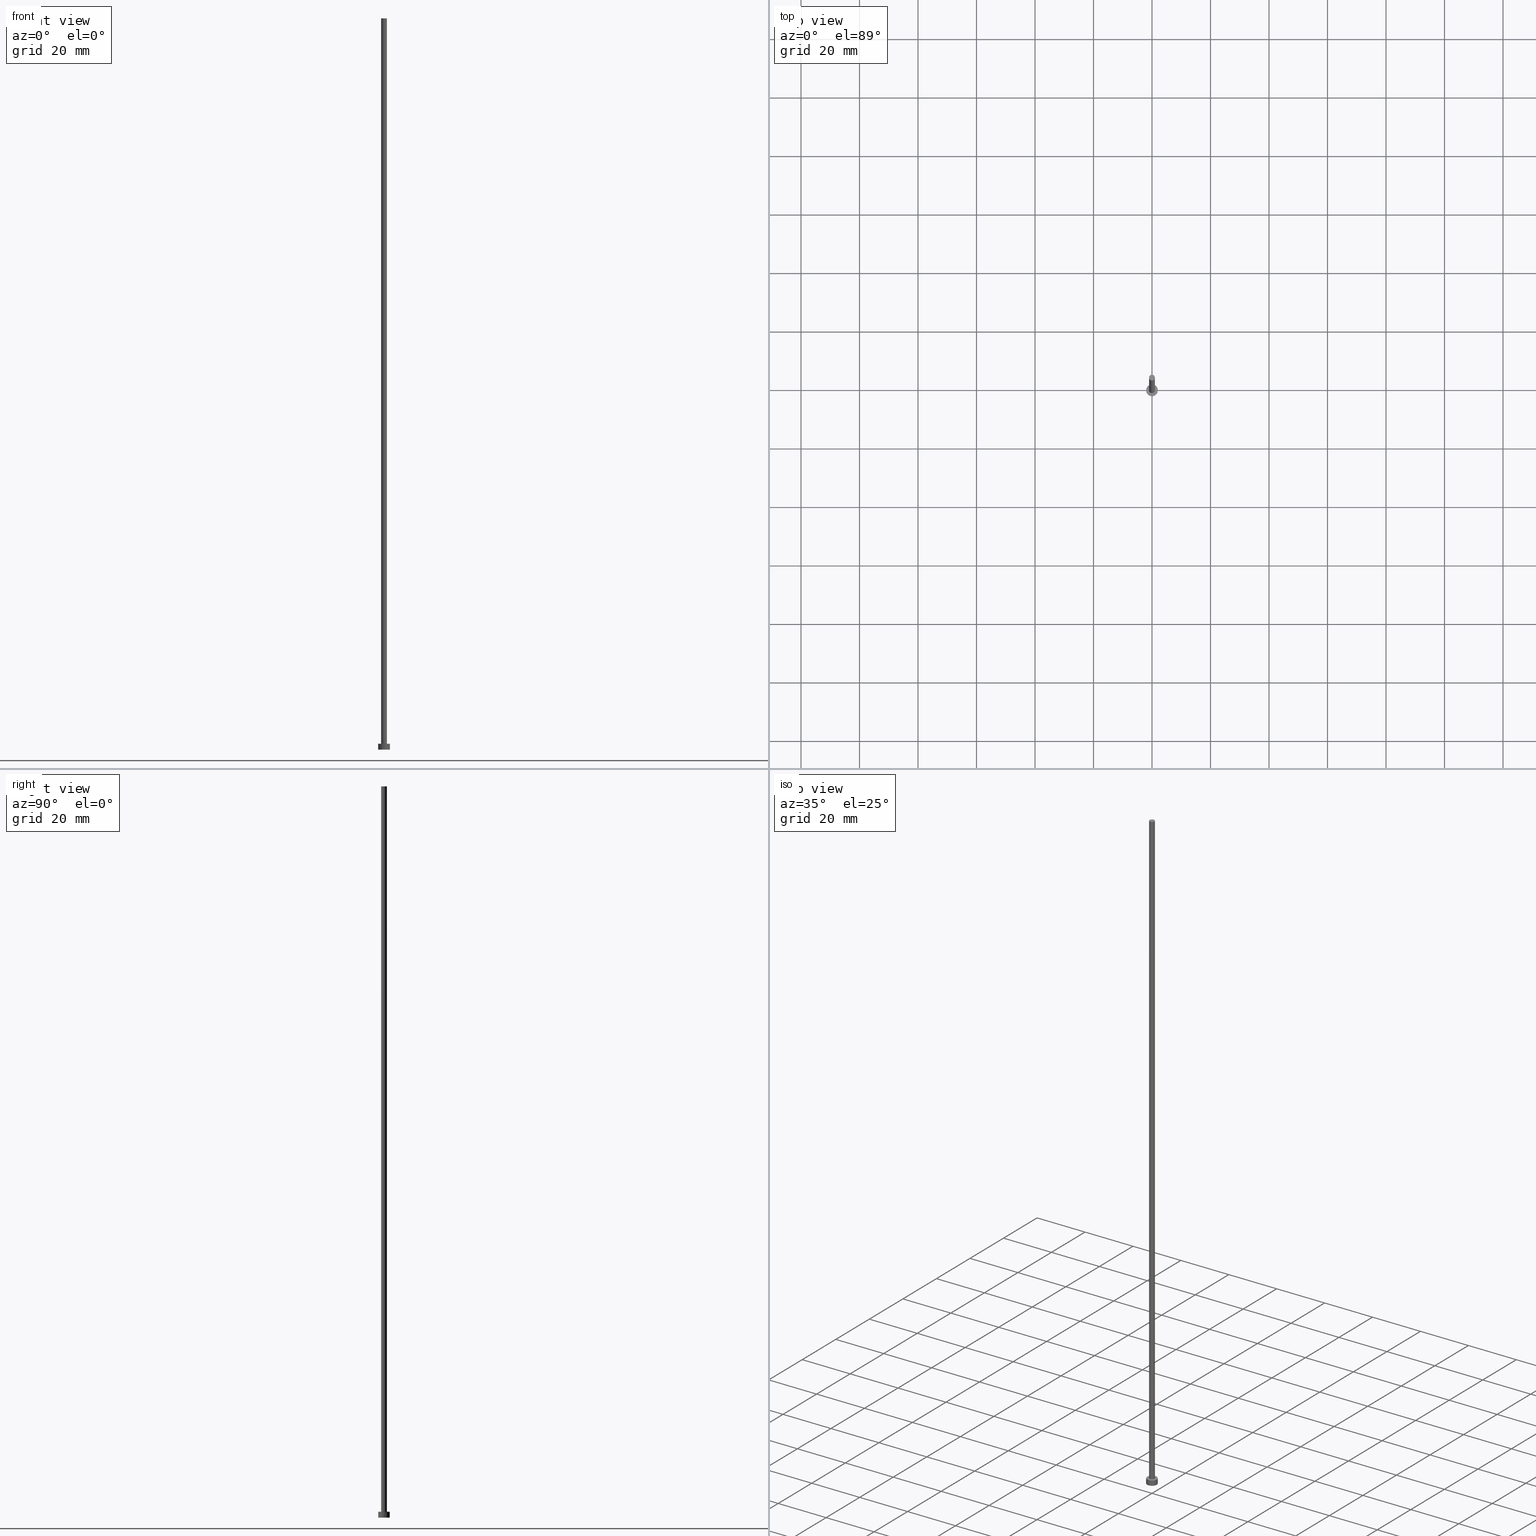
[diagram: canonical four-view strip — front | top / right | iso, engineering-drawing reading convention]
A machine part, canonical four-view strip (front | top / right | iso — engineering-drawing reading convention). The complete STEP part file that produces these views, byte-faithful:
ISO-10303-21;
HEADER;
FILE_DESCRIPTION (( 'STEP AP203' ),
    '1' );
FILE_NAME ('0b35.STEP',
    '2023-02-12T12:52:45',
    ( '' ),
    ( '' ),
    'SwSTEP 2.0',
    'SolidWorks 2019',
    '' );
FILE_SCHEMA (( 'CONFIG_CONTROL_DESIGN' ));
ENDSEC;

DATA;
#1 = CC_DESIGN_DATE_AND_TIME_ASSIGNMENT ( #144, #168, ( #180 ) ) ;
#2 = ORIENTED_EDGE ( 'NONE', *, *, #227, .F. ) ;
#3 = DIRECTION ( 'NONE',  ( -0.000000000000000000, -0.000000000000000000, -1.000000000000000000 ) ) ;
#4 = PERSON_AND_ORGANIZATION ( #91, #23 ) ;
#5 = CC_DESIGN_DATE_AND_TIME_ASSIGNMENT ( #150, #33, ( #96 ) ) ;
#6 = CARTESIAN_POINT ( 'NONE',  ( 0.000000000000000000, 0.000000000000000000, 2.000000000000000000 ) ) ;
#7 = EDGE_LOOP ( 'NONE', ( #10, #236, #202, #19 ) ) ;
#8 = CARTESIAN_POINT ( 'NONE',  ( -2.000000000000000000, 0.000000000000000000, 2.000000000000000000 ) ) ;
#9 = ADVANCED_BREP_SHAPE_REPRESENTATION ( '0b35', ( #44, #34 ), #193 ) ;
#10 = ORIENTED_EDGE ( 'NONE', *, *, #122, .F. ) ;
#11 = AXIS2_PLACEMENT_3D ( 'NONE', #186, #145, #88 ) ;
#12 = DIRECTION ( 'NONE',  ( -0.000000000000000000, -0.000000000000000000, -1.000000000000000000 ) ) ;
#13 = LOCAL_TIME ( 13, 52, 45.00000000000000000, #191 ) ;
#14 = PERSON_AND_ORGANIZATION ( #91, #23 ) ;
#15 = EDGE_CURVE ( 'NONE', #103, #105, #120, .T. ) ;
#16 = CARTESIAN_POINT ( 'NONE',  ( 0.000000000000000000, 0.000000000000000000, 0.000000000000000000 ) ) ;
#17 = PRODUCT_RELATED_PRODUCT_CATEGORY ( 'detail', '', ( #159 ) ) ;
#18 = VERTEX_POINT ( 'NONE', #224 ) ;
#19 = ORIENTED_EDGE ( 'NONE', *, *, #82, .F. ) ;
#20 = PRODUCT_DEFINITION_SHAPE ( 'NONE', 'NONE',  #180 ) ;
#21 = AXIS2_PLACEMENT_3D ( 'NONE', #134, #210, #79 ) ;
#22 = CYLINDRICAL_SURFACE ( 'NONE', #100, 1.000000000000000000 ) ;
#23 = ORGANIZATION ( 'NEUR�EN�', 'NEUR�EN�', '' ) ;
#24 = EDGE_LOOP ( 'NONE', ( #252, #205 ) ) ;
#25 = EDGE_CURVE ( 'NONE', #176, #199, #230, .T. ) ;
#26 = ORIENTED_EDGE ( 'NONE', *, *, #51, .F. ) ;
#27 = ORIENTED_EDGE ( 'NONE', *, *, #122, .T. ) ;
#28 = CIRCLE ( 'NONE', #83, 2.000000000000000000 ) ;
#29 = DIRECTION ( 'NONE',  ( -1.000000000000000000, 0.000000000000000000, 0.000000000000000000 ) ) ;
#30 = COORDINATED_UNIVERSAL_TIME_OFFSET ( 1, 0, .AHEAD. ) ;
#31 = DIRECTION ( 'NONE',  ( -1.000000000000000000, 0.000000000000000000, 0.000000000000000000 ) ) ;
#32 = DIRECTION ( 'NONE',  ( -0.000000000000000000, -0.000000000000000000, -1.000000000000000000 ) ) ;
#33 = DATE_TIME_ROLE ( 'classification_date' ) ;
#34 = AXIS2_PLACEMENT_3D ( 'NONE', #251, #81, #47 ) ;
#35 = DIRECTION ( 'NONE',  ( -0.000000000000000000, -0.000000000000000000, -1.000000000000000000 ) ) ;
#36 = PERSON_AND_ORGANIZATION_ROLE ( 'classification_officer' ) ;
#37 = DIRECTION ( 'NONE',  ( 0.000000000000000000, 0.000000000000000000, 1.000000000000000000 ) ) ;
#38 = CIRCLE ( 'NONE', #59, 1.000000000000000000 ) ;
#39 = ADVANCED_FACE ( 'NONE', ( #169 ), #149, .T. ) ;
#40 = APPROVAL ( #147, 'NEUR�EN�' ) ;
#41 = DIRECTION ( 'NONE',  ( 1.000000000000000000, 0.000000000000000000, 0.000000000000000000 ) ) ;
#42 = APPROVAL ( #53, 'NEUR�EN�' ) ;
#43 = FACE_OUTER_BOUND ( 'NONE', #24, .T. ) ;
#44 = MANIFOLD_SOLID_BREP ( 'P�idat vysunut�m3', #253 ) ;
#45 = CYLINDRICAL_SURFACE ( 'NONE', #245, 1.000000000000000000 ) ;
#46 = CALENDAR_DATE ( 2023, 12, 2 ) ;
#47 = DIRECTION ( 'NONE',  ( 1.000000000000000000, 0.000000000000000000, 0.000000000000000000 ) ) ;
#48 = FACE_BOUND ( 'NONE', #254, .T. ) ;
#49 = ADVANCED_FACE ( 'NONE', ( #225 ), #22, .T. ) ;
#50 = DIRECTION ( 'NONE',  ( 1.000000000000000000, 0.000000000000000000, 0.000000000000000000 ) ) ;
#51 = EDGE_CURVE ( 'NONE', #18, #206, #52, .T. ) ;
#52 = CIRCLE ( 'NONE', #201, 2.000000000000000000 ) ;
#53 = APPROVAL_STATUS ( 'not_yet_approved' ) ;
#54 = CARTESIAN_POINT ( 'NONE',  ( 0.000000000000000000, 0.000000000000000000, 2.000000000000000000 ) ) ;
#55 = CC_DESIGN_APPROVAL ( #140, ( #180 ) ) ;
#56 = CIRCLE ( 'NONE', #94, 1.000000000000000000 ) ;
#57 = ORIENTED_EDGE ( 'NONE', *, *, #51, .T. ) ;
#58 = ORIENTED_EDGE ( 'NONE', *, *, #146, .T. ) ;
#59 = AXIS2_PLACEMENT_3D ( 'NONE', #244, #85, #66 ) ;
#60 = COORDINATED_UNIVERSAL_TIME_OFFSET ( 1, 0, .AHEAD. ) ;
#61 = ORIENTED_EDGE ( 'NONE', *, *, #25, .T. ) ;
#62 = CALENDAR_DATE ( 2023, 12, 2 ) ;
#63 = PLANE ( 'NONE',  #107 ) ;
#64 = PERSON_AND_ORGANIZATION ( #91, #23 ) ;
#65 = DIRECTION ( 'NONE',  ( 1.000000000000000000, 0.000000000000000000, 0.000000000000000000 ) ) ;
#66 = DIRECTION ( 'NONE',  ( 1.000000000000000000, 0.000000000000000000, 0.000000000000000000 ) ) ;
#67 = CALENDAR_DATE ( 2023, 12, 2 ) ;
#68 = CARTESIAN_POINT ( 'NONE',  ( 0.000000000000000000, 0.000000000000000000, 250.0000000000000000 ) ) ;
#69 = VECTOR ( 'NONE', #35, 1000.000000000000000 ) ;
#70 = PERSON_AND_ORGANIZATION ( #91, #23 ) ;
#71 = CC_DESIGN_PERSON_AND_ORGANIZATION_ASSIGNMENT ( #97, #226, ( #109 ) ) ;
#72 = SHAPE_DEFINITION_REPRESENTATION ( #20, #9 ) ;
#73 = CARTESIAN_POINT ( 'NONE',  ( 0.000000000000000000, 0.000000000000000000, 2.000000000000000000 ) ) ;
#74 = APPROVAL_ROLE ( '' ) ;
#75 = CARTESIAN_POINT ( 'NONE',  ( 2.000000000000000000, 2.449293598294706414E-16, 2.000000000000000000 ) ) ;
#76 = CC_DESIGN_PERSON_AND_ORGANIZATION_ASSIGNMENT ( #189, #87, ( #159 ) ) ;
#77 = CALENDAR_DATE ( 2023, 12, 2 ) ;
#78 = CC_DESIGN_APPROVAL ( #40, ( #109 ) ) ;
#79 = DIRECTION ( 'NONE',  ( 1.000000000000000000, 0.000000000000000000, -0.000000000000000000 ) ) ;
#80 = AXIS2_PLACEMENT_3D ( 'NONE', #93, #213, #50 ) ;
#81 = DIRECTION ( 'NONE',  ( 0.000000000000000000, 0.000000000000000000, 1.000000000000000000 ) ) ;
#82 = EDGE_CURVE ( 'NONE', #135, #103, #171, .T. ) ;
#83 = AXIS2_PLACEMENT_3D ( 'NONE', #16, #37, #196 ) ;
#84 = DIRECTION ( 'NONE',  ( 0.000000000000000000, 0.000000000000000000, 1.000000000000000000 ) ) ;
#85 = DIRECTION ( 'NONE',  ( 0.000000000000000000, 0.000000000000000000, 1.000000000000000000 ) ) ;
#86 = APPLICATION_CONTEXT ( 'configuration controlled 3d designs of mechanical parts and assemblies' ) ;
#87 = PERSON_AND_ORGANIZATION_ROLE ( 'design_owner' ) ;
#88 = DIRECTION ( 'NONE',  ( 1.000000000000000000, 0.000000000000000000, 0.000000000000000000 ) ) ;
#89 = APPROVAL_STATUS ( 'not_yet_approved' ) ;
#90 = DIRECTION ( 'NONE',  ( 0.000000000000000000, 0.000000000000000000, 1.000000000000000000 ) ) ;
#91 = PERSON ( 'NEUR�EN�', 'NEUR�EN�', 'NEUR�EN�', ('NEUR�EN�'), ('NEUR�EN�'), ('NEUR�EN�') ) ;
#92 = CARTESIAN_POINT ( 'NONE',  ( -1.000000000000000000, 0.000000000000000000, 2.000000000000000000 ) ) ;
#93 = CARTESIAN_POINT ( 'NONE',  ( 0.000000000000000000, 0.000000000000000000, 250.0000000000000000 ) ) ;
#94 = AXIS2_PLACEMENT_3D ( 'NONE', #247, #154, #228 ) ;
#95 = ORIENTED_EDGE ( 'NONE', *, *, #146, .F. ) ;
#96 = SECURITY_CLASSIFICATION ( '', '', #153 ) ;
#97 = PERSON_AND_ORGANIZATION ( #91, #23 ) ;
#98 = PERSON_AND_ORGANIZATION ( #91, #23 ) ;
#99 = CYLINDRICAL_SURFACE ( 'NONE', #250, 2.000000000000000000 ) ;
#100 = AXIS2_PLACEMENT_3D ( 'NONE', #188, #3, #29 ) ;
#101 = APPROVAL_PERSON_ORGANIZATION ( #98, #42, #74 ) ;
#102 = APPLICATION_PROTOCOL_DEFINITION ( 'international standard', 'config_control_design', 1994, #160 ) ;
#103 = VERTEX_POINT ( 'NONE', #92 ) ;
#104 = DESIGN_CONTEXT ( 'detailed design', #86, 'design' ) ;
#105 = VERTEX_POINT ( 'NONE', #123 ) ;
#106 = ORIENTED_EDGE ( 'NONE', *, *, #218, .T. ) ;
#107 = AXIS2_PLACEMENT_3D ( 'NONE', #68, #151, #108 ) ;
#108 = DIRECTION ( 'NONE',  ( 1.000000000000000000, 0.000000000000000000, -0.000000000000000000 ) ) ;
#109 = PRODUCT_DEFINITION_FORMATION_WITH_SPECIFIED_SOURCE ( 'LIBOVOLN�', '', #159, .NOT_KNOWN. ) ;
#110 = EDGE_LOOP ( 'NONE', ( #2, #26, #127, #61 ) ) ;
#111 = EDGE_LOOP ( 'NONE', ( #237, #215, #106, #148 ) ) ;
#112 = CARTESIAN_POINT ( 'NONE',  ( 0.000000000000000000, 0.000000000000000000, 2.000000000000000000 ) ) ;
#113 = DIRECTION ( 'NONE',  ( -0.000000000000000000, -0.000000000000000000, -1.000000000000000000 ) ) ;
#114 = CARTESIAN_POINT ( 'NONE',  ( 2.000000000000000000, 2.449293598294706414E-16, 2.000000000000000000 ) ) ;
#115 = LOCAL_TIME ( 13, 52, 45.00000000000000000, #30 ) ;
#116 = COORDINATED_UNIVERSAL_TIME_OFFSET ( 1, 0, .AHEAD. ) ;
#117 = LINE ( 'NONE', #130, #69 ) ;
#118 = PLANE ( 'NONE',  #157 ) ;
#119 = CARTESIAN_POINT ( 'NONE',  ( 0.000000000000000000, 0.000000000000000000, 2.000000000000000000 ) ) ;
#120 = CIRCLE ( 'NONE', #11, 1.000000000000000000 ) ;
#121 = ORIENTED_EDGE ( 'NONE', *, *, #82, .T. ) ;
#122 = EDGE_CURVE ( 'NONE', #207, #135, #38, .T. ) ;
#123 = CARTESIAN_POINT ( 'NONE',  ( 1.000000000000000000, 1.224646799147353207E-16, 2.000000000000000000 ) ) ;
#124 = AXIS2_PLACEMENT_3D ( 'NONE', #119, #156, #231 ) ;
#125 = PLANE ( 'NONE',  #21 ) ;
#126 = ADVANCED_FACE ( 'NONE', ( #243 ), #45, .T. ) ;
#127 = ORIENTED_EDGE ( 'NONE', *, *, #200, .T. ) ;
#128 = CARTESIAN_POINT ( 'NONE',  ( 0.000000000000000000, 0.000000000000000000, 250.0000000000000000 ) ) ;
#129 = CC_DESIGN_SECURITY_CLASSIFICATION ( #96, ( #109 ) ) ;
#130 = CARTESIAN_POINT ( 'NONE',  ( 1.000000000000000000, 1.224646799147353207E-16, 250.0000000000000000 ) ) ;
#131 = DIRECTION ( 'NONE',  ( 0.000000000000000000, 0.000000000000000000, 1.000000000000000000 ) ) ;
#132 = CARTESIAN_POINT ( 'NONE',  ( 1.000000000000000000, 1.224646799147353207E-16, 250.0000000000000000 ) ) ;
#133 = ADVANCED_FACE ( 'NONE', ( #166 ), #63, .T. ) ;
#134 = CARTESIAN_POINT ( 'NONE',  ( 0.000000000000000000, 0.000000000000000000, 0.000000000000000000 ) ) ;
#135 = VERTEX_POINT ( 'NONE', #222 ) ;
#136 = ADVANCED_FACE ( 'NONE', ( #43 ), #125, .F. ) ;
#137 = ORIENTED_EDGE ( 'NONE', *, *, #15, .T. ) ;
#138 = VECTOR ( 'NONE', #164, 1000.000000000000000 ) ;
#139 = CC_DESIGN_APPROVAL ( #42, ( #96 ) ) ;
#140 = APPROVAL ( #89, 'NEUR�EN�' ) ;
#141 = EDGE_CURVE ( 'NONE', #105, #103, #56, .T. ) ;
#142 = CARTESIAN_POINT ( 'NONE',  ( 0.000000000000000000, 0.000000000000000000, 0.000000000000000000 ) ) ;
#143 = CC_DESIGN_PERSON_AND_ORGANIZATION_ASSIGNMENT ( #14, #36, ( #96 ) ) ;
#144 = DATE_AND_TIME ( #62, #208 ) ;
#145 = DIRECTION ( 'NONE',  ( 0.000000000000000000, 0.000000000000000000, 1.000000000000000000 ) ) ;
#146 = EDGE_CURVE ( 'NONE', #135, #207, #170, .T. ) ;
#147 = APPROVAL_STATUS ( 'not_yet_approved' ) ;
#148 = ORIENTED_EDGE ( 'NONE', *, *, #200, .F. ) ;
#149 = CYLINDRICAL_SURFACE ( 'NONE', #167, 2.000000000000000000 ) ;
#150 = DATE_AND_TIME ( #46, #115 ) ;
#151 = DIRECTION ( 'NONE',  ( 0.000000000000000000, 0.000000000000000000, 1.000000000000000000 ) ) ;
#152 = FACE_OUTER_BOUND ( 'NONE', #249, .T. ) ;
#153 = SECURITY_CLASSIFICATION_LEVEL ( 'unclassified' ) ;
#154 = DIRECTION ( 'NONE',  ( 0.000000000000000000, 0.000000000000000000, 1.000000000000000000 ) ) ;
#155 = ORIENTED_EDGE ( 'NONE', *, *, #178, .F. ) ;
#156 = DIRECTION ( 'NONE',  ( 0.000000000000000000, 0.000000000000000000, 1.000000000000000000 ) ) ;
#157 = AXIS2_PLACEMENT_3D ( 'NONE', #54, #131, #194 ) ;
#158 =( NAMED_UNIT ( * ) PLANE_ANGLE_UNIT ( ) SI_UNIT ( $, .RADIAN. ) );
#159 = PRODUCT ( '0b35', '0b35', '', ( #234 ) ) ;
#160 = APPLICATION_CONTEXT ( 'configuration controlled 3d designs of mechanical parts and assemblies' ) ;
#161 = EDGE_LOOP ( 'NONE', ( #155, #95, #121, #137 ) ) ;
#162 = COORDINATED_UNIVERSAL_TIME_OFFSET ( 1, 0, .AHEAD. ) ;
#163 = CC_DESIGN_PERSON_AND_ORGANIZATION_ASSIGNMENT ( #70, #211, ( #109 ) ) ;
#164 = DIRECTION ( 'NONE',  ( -0.000000000000000000, -0.000000000000000000, -1.000000000000000000 ) ) ;
#165 = CALENDAR_DATE ( 2023, 12, 2 ) ;
#166 = FACE_OUTER_BOUND ( 'NONE', #239, .T. ) ;
#167 = AXIS2_PLACEMENT_3D ( 'NONE', #112, #220, #184 ) ;
#168 = DATE_TIME_ROLE ( 'creation_date' ) ;
#169 = FACE_OUTER_BOUND ( 'NONE', #111, .T. ) ;
#170 = CIRCLE ( 'NONE', #80, 1.000000000000000000 ) ;
#171 = LINE ( 'NONE', #242, #138 ) ;
#172 = DATE_AND_TIME ( #77, #235 ) ;
#173 = VECTOR ( 'NONE', #32, 1000.000000000000000 ) ;
#174 = APPROVAL_DATE_TIME ( #172, #42 ) ;
#175 = DIRECTION ( 'NONE',  ( -0.000000000000000000, -0.000000000000000000, -1.000000000000000000 ) ) ;
#176 = VERTEX_POINT ( 'NONE', #214 ) ;
#177 = APPROVAL_PERSON_ORGANIZATION ( #64, #40, #195 ) ;
#178 = EDGE_CURVE ( 'NONE', #207, #105, #117, .T. ) ;
#179 = ORIENTED_EDGE ( 'NONE', *, *, #255, .T. ) ;
#180 = PRODUCT_DEFINITION ( 'NEZN�M�', '', #109, #104 ) ;
#181 = CC_DESIGN_PERSON_AND_ORGANIZATION_ASSIGNMENT ( #4, #241, ( #180 ) ) ;
#182 = ADVANCED_FACE ( 'NONE', ( #48, #152 ), #118, .T. ) ;
#183 = PERSON_AND_ORGANIZATION ( #91, #23 ) ;
#184 = DIRECTION ( 'NONE',  ( -1.000000000000000000, 0.000000000000000000, 0.000000000000000000 ) ) ;
#185 = APPROVAL_ROLE ( '' ) ;
#186 = CARTESIAN_POINT ( 'NONE',  ( 0.000000000000000000, 0.000000000000000000, 2.000000000000000000 ) ) ;
#187 = APPLICATION_PROTOCOL_DEFINITION ( 'international standard', 'config_control_design', 1994, #86 ) ;
#188 = CARTESIAN_POINT ( 'NONE',  ( 0.000000000000000000, 0.000000000000000000, 250.0000000000000000 ) ) ;
#189 = PERSON_AND_ORGANIZATION ( #91, #23 ) ;
#190 = DIRECTION ( 'NONE',  ( -1.000000000000000000, 0.000000000000000000, 0.000000000000000000 ) ) ;
#191 = COORDINATED_UNIVERSAL_TIME_OFFSET ( 1, 0, .AHEAD. ) ;
#192 = LINE ( 'NONE', #75, #232 ) ;
#193 =( GEOMETRIC_REPRESENTATION_CONTEXT ( 3 ) GLOBAL_UNCERTAINTY_ASSIGNED_CONTEXT ( ( #198 ) ) GLOBAL_UNIT_ASSIGNED_CONTEXT ( ( #216, #158, #197 ) ) REPRESENTATION_CONTEXT ( 'NONE', 'WORKASPACE' ) );
#194 = DIRECTION ( 'NONE',  ( 1.000000000000000000, 0.000000000000000000, -0.000000000000000000 ) ) ;
#195 = APPROVAL_ROLE ( '' ) ;
#196 = DIRECTION ( 'NONE',  ( 1.000000000000000000, 0.000000000000000000, 0.000000000000000000 ) ) ;
#197 =( NAMED_UNIT ( * ) SI_UNIT ( $, .STERADIAN. ) SOLID_ANGLE_UNIT ( ) );
#198 = UNCERTAINTY_MEASURE_WITH_UNIT (LENGTH_MEASURE( 1.000000000000000082E-05 ), #216, 'distance_accuracy_value', 'NONE');
#199 = VERTEX_POINT ( 'NONE', #229 ) ;
#200 = EDGE_CURVE ( 'NONE', #18, #176, #212, .T. ) ;
#201 = AXIS2_PLACEMENT_3D ( 'NONE', #6, #90, #41 ) ;
#202 = ORIENTED_EDGE ( 'NONE', *, *, #141, .T. ) ;
#203 = DATE_AND_TIME ( #165, #219 ) ;
#204 = ORIENTED_EDGE ( 'NONE', *, *, #15, .F. ) ;
#205 = ORIENTED_EDGE ( 'NONE', *, *, #218, .F. ) ;
#206 = VERTEX_POINT ( 'NONE', #114 ) ;
#207 = VERTEX_POINT ( 'NONE', #132 ) ;
#208 = LOCAL_TIME ( 13, 52, 45.00000000000000000, #60 ) ;
#209 = APPROVAL_DATE_TIME ( #246, #40 ) ;
#210 = DIRECTION ( 'NONE',  ( 0.000000000000000000, 0.000000000000000000, 1.000000000000000000 ) ) ;
#211 = PERSON_AND_ORGANIZATION_ROLE ( 'creator' ) ;
#212 = LINE ( 'NONE', #8, #173 ) ;
#213 = DIRECTION ( 'NONE',  ( 0.000000000000000000, 0.000000000000000000, 1.000000000000000000 ) ) ;
#214 = CARTESIAN_POINT ( 'NONE',  ( -2.000000000000000000, 0.000000000000000000, 0.000000000000000000 ) ) ;
#215 = ORIENTED_EDGE ( 'NONE', *, *, #227, .T. ) ;
#216 =( LENGTH_UNIT ( ) NAMED_UNIT ( * ) SI_UNIT ( .MILLI., .METRE. ) );
#217 = CIRCLE ( 'NONE', #124, 2.000000000000000000 ) ;
#218 = EDGE_CURVE ( 'NONE', #199, #176, #28, .T. ) ;
#219 = LOCAL_TIME ( 13, 52, 45.00000000000000000, #162 ) ;
#220 = DIRECTION ( 'NONE',  ( -0.000000000000000000, -0.000000000000000000, -1.000000000000000000 ) ) ;
#221 = APPROVAL_PERSON_ORGANIZATION ( #183, #140, #185 ) ;
#222 = CARTESIAN_POINT ( 'NONE',  ( -1.000000000000000000, 0.000000000000000000, 250.0000000000000000 ) ) ;
#223 = ADVANCED_FACE ( 'NONE', ( #248 ), #99, .T. ) ;
#224 = CARTESIAN_POINT ( 'NONE',  ( -2.000000000000000000, 0.000000000000000000, 2.000000000000000000 ) ) ;
#225 = FACE_OUTER_BOUND ( 'NONE', #161, .T. ) ;
#226 = PERSON_AND_ORGANIZATION_ROLE ( 'design_supplier' ) ;
#227 = EDGE_CURVE ( 'NONE', #206, #199, #192, .T. ) ;
#228 = DIRECTION ( 'NONE',  ( 1.000000000000000000, 0.000000000000000000, 0.000000000000000000 ) ) ;
#229 = CARTESIAN_POINT ( 'NONE',  ( 2.000000000000000000, 2.449293598294706414E-16, 0.000000000000000000 ) ) ;
#230 = CIRCLE ( 'NONE', #240, 2.000000000000000000 ) ;
#231 = DIRECTION ( 'NONE',  ( 1.000000000000000000, 0.000000000000000000, 0.000000000000000000 ) ) ;
#232 = VECTOR ( 'NONE', #12, 1000.000000000000000 ) ;
#233 = ORIENTED_EDGE ( 'NONE', *, *, #141, .F. ) ;
#234 = MECHANICAL_CONTEXT ( 'NONE', #160, 'mechanical' ) ;
#235 = LOCAL_TIME ( 13, 52, 45.00000000000000000, #116 ) ;
#236 = ORIENTED_EDGE ( 'NONE', *, *, #178, .T. ) ;
#237 = ORIENTED_EDGE ( 'NONE', *, *, #255, .F. ) ;
#238 = APPROVAL_DATE_TIME ( #203, #140 ) ;
#239 = EDGE_LOOP ( 'NONE', ( #58, #27 ) ) ;
#240 = AXIS2_PLACEMENT_3D ( 'NONE', #142, #84, #65 ) ;
#241 = PERSON_AND_ORGANIZATION_ROLE ( 'creator' ) ;
#242 = CARTESIAN_POINT ( 'NONE',  ( -1.000000000000000000, 0.000000000000000000, 250.0000000000000000 ) ) ;
#243 = FACE_OUTER_BOUND ( 'NONE', #7, .T. ) ;
#244 = CARTESIAN_POINT ( 'NONE',  ( 0.000000000000000000, 0.000000000000000000, 250.0000000000000000 ) ) ;
#245 = AXIS2_PLACEMENT_3D ( 'NONE', #128, #113, #190 ) ;
#246 = DATE_AND_TIME ( #67, #13 ) ;
#247 = CARTESIAN_POINT ( 'NONE',  ( 0.000000000000000000, 0.000000000000000000, 2.000000000000000000 ) ) ;
#248 = FACE_OUTER_BOUND ( 'NONE', #110, .T. ) ;
#249 = EDGE_LOOP ( 'NONE', ( #57, #179 ) ) ;
#250 = AXIS2_PLACEMENT_3D ( 'NONE', #73, #175, #31 ) ;
#251 = CARTESIAN_POINT ( 'NONE',  ( 0.000000000000000000, 0.000000000000000000, 0.000000000000000000 ) ) ;
#252 = ORIENTED_EDGE ( 'NONE', *, *, #25, .F. ) ;
#253 = CLOSED_SHELL ( 'NONE', ( #126, #39, #223, #182, #136, #49, #133 ) ) ;
#254 = EDGE_LOOP ( 'NONE', ( #204, #233 ) ) ;
#255 = EDGE_CURVE ( 'NONE', #206, #18, #217, .T. ) ;
ENDSEC;
END-ISO-10303-21;
